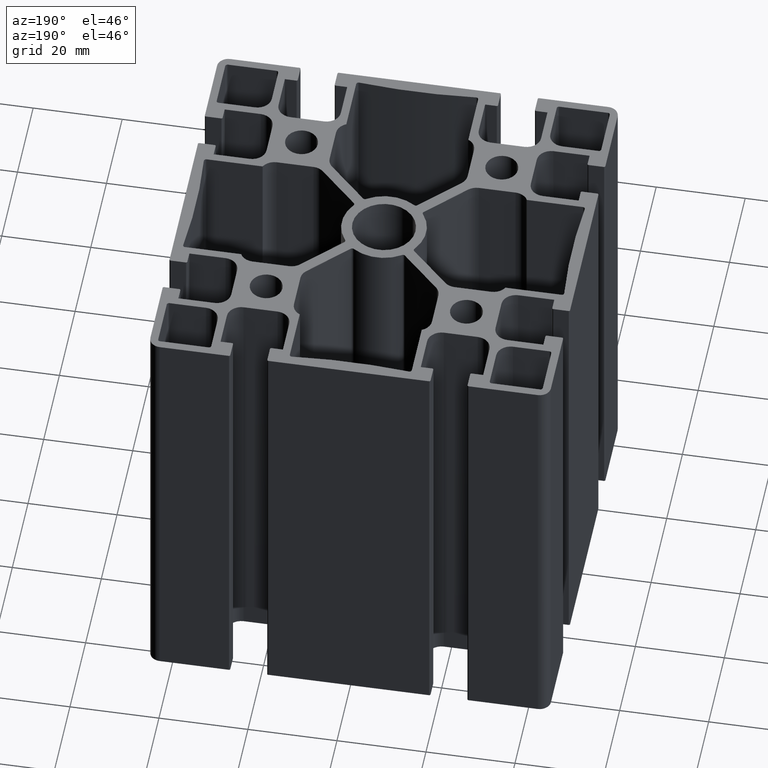
[diagram: clean part render]
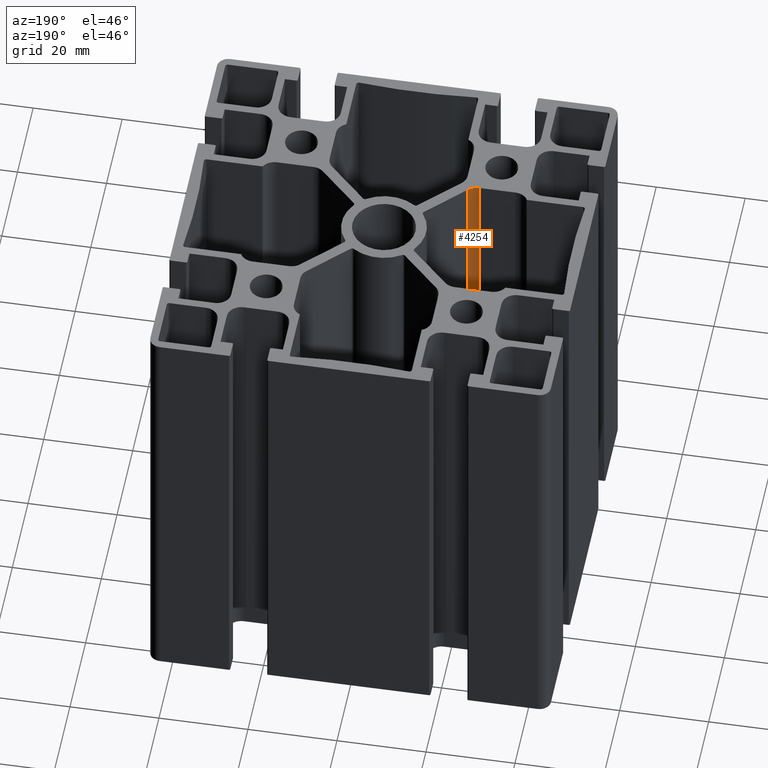
[diagram: same view with one face highlighted and labeled with its STEP entity id]
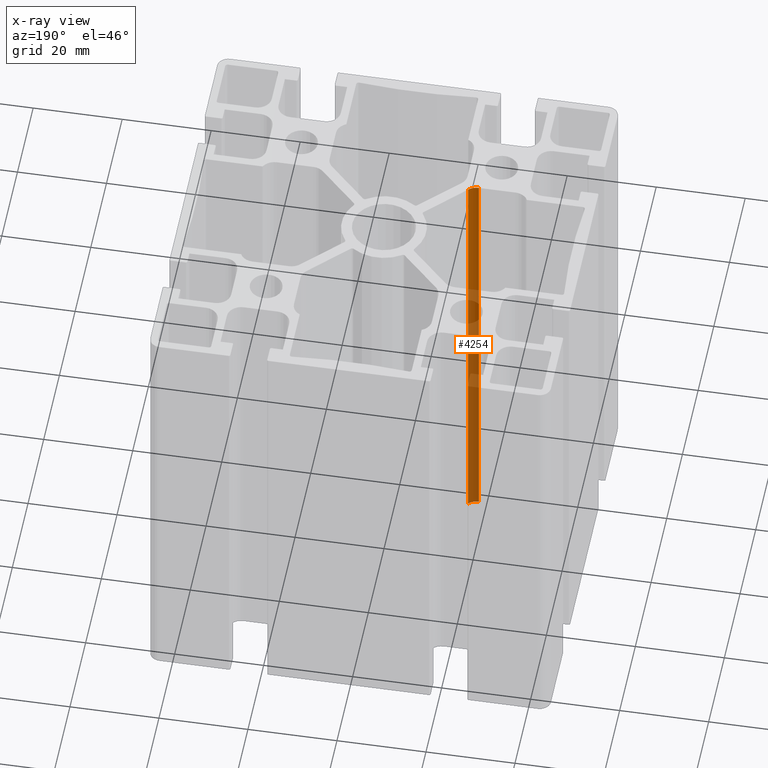
[diagram: x-ray of the same camera — body ghosted, the highlighted face saturated]
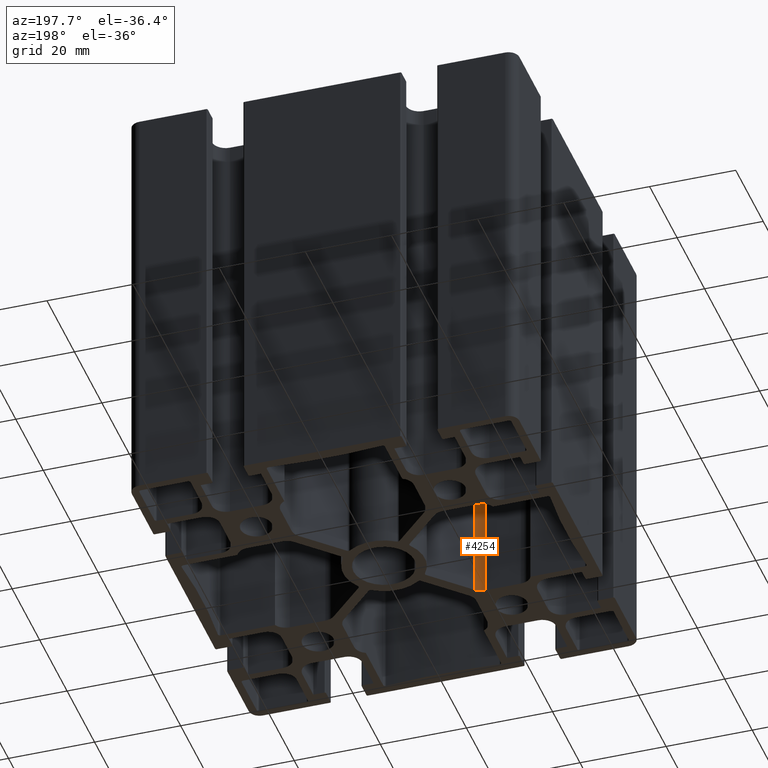
[diagram: same view with one face highlighted and labeled with its STEP entity id]
A machine part, auxiliary view. The second image highlights one B-rep face of the part: STEP entity #4254.
The next image is the same camera in x-ray: the body ghosted, the highlighted face saturated — about 68% of this face is hidden behind the body in this view.
A second angle (auxiliary view) of the same face is appended — the face is thin or edge-on in the first view.
In plain terms, the highlighted cylindrical surface (edge-blend (fillet) strip) has radius 3.2 mm, axis along (0, 0, 1).
Its self-contained STEP definition (entity closure, byte-faithful):
#158=FACE_OUTER_BOUND('',#381,.T.);
#381=EDGE_LOOP('',(#2831,#2832,#2833,#2834));
#636=LINE('',#6272,#1068);
#638=LINE('',#6278,#1070);
#1068=VECTOR('',#4939,100.);
#1070=VECTOR('',#4945,100.);
#1499=CIRCLE('',#4482,3.2);
#1500=CIRCLE('',#4483,3.2);
#1727=VERTEX_POINT('',#6269);
#1728=VERTEX_POINT('',#6271);
#1729=VERTEX_POINT('',#6275);
#1730=VERTEX_POINT('',#6277);
#2170=EDGE_CURVE('',#1727,#1728,#636,.T.);
#2172=EDGE_CURVE('',#1727,#1729,#1499,.T.);
#2173=EDGE_CURVE('',#1729,#1730,#638,.T.);
#2174=EDGE_CURVE('',#1728,#1730,#1500,.T.);
#2831=ORIENTED_EDGE('',*,*,#2172,.T.);
#2832=ORIENTED_EDGE('',*,*,#2173,.T.);
#2833=ORIENTED_EDGE('',*,*,#2174,.F.);
#2834=ORIENTED_EDGE('',*,*,#2170,.F.);
#4140=CYLINDRICAL_SURFACE('',#4481,3.2);
#4254=ADVANCED_FACE('',(#158),#4140,.F.);
#4481=AXIS2_PLACEMENT_3D('',#6274,#4941,#4942);
#4482=AXIS2_PLACEMENT_3D('',#6276,#4943,#4944);
#4483=AXIS2_PLACEMENT_3D('',#6279,#4946,#4947);
#4939=DIRECTION('',(0.,0.,-1.));
#4941=DIRECTION('center_axis',(0.,0.,1.));
#4942=DIRECTION('ref_axis',(0.,1.,0.));
#4943=DIRECTION('center_axis',(0.,0.,1.));
#4944=DIRECTION('ref_axis',(0.,1.,0.));
#4945=DIRECTION('',(0.,0.,-1.));
#4946=DIRECTION('center_axis',(0.,0.,1.));
#4947=DIRECTION('ref_axis',(0.,1.,0.));
#6269=CARTESIAN_POINT('',(-18.5932503525603,-15.5,100.));
#6271=CARTESIAN_POINT('',(-18.5932503525603,-15.5,0.));
#6272=CARTESIAN_POINT('',(-18.5932503525603,-15.5,0.));
#6274=CARTESIAN_POINT('Origin',(-18.5932503525603,-12.3,0.));
#6275=CARTESIAN_POINT('',(-16.3305086527633,-14.562741699797,100.));
#6276=CARTESIAN_POINT('Origin',(-18.5932503525603,-12.3,100.));
#6277=CARTESIAN_POINT('',(-16.3305086527633,-14.562741699797,0.));
#6278=CARTESIAN_POINT('',(-16.3305086527633,-14.562741699797,0.));
#6279=CARTESIAN_POINT('Origin',(-18.5932503525603,-12.3,0.));